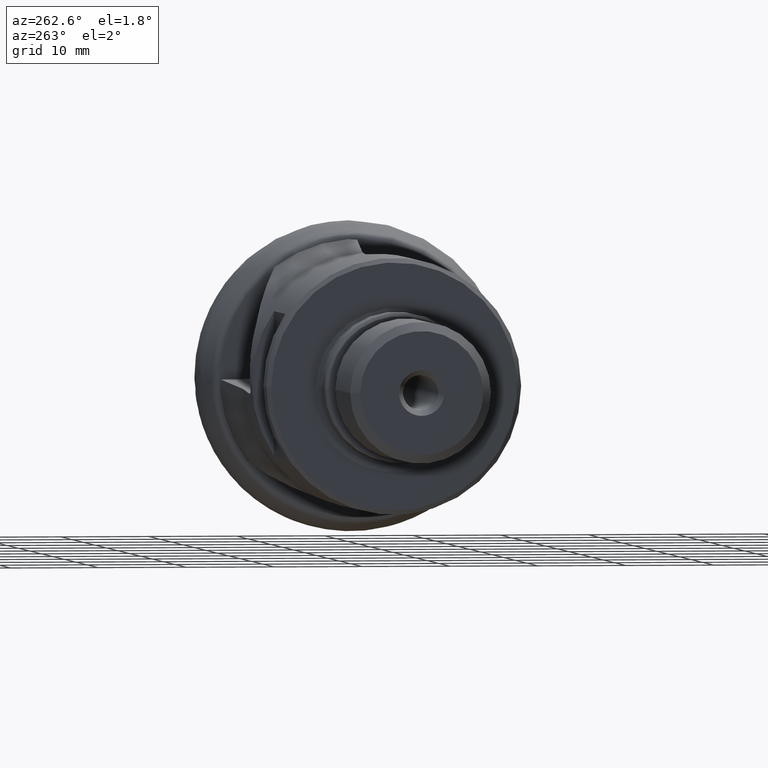
[diagram: clean part render]
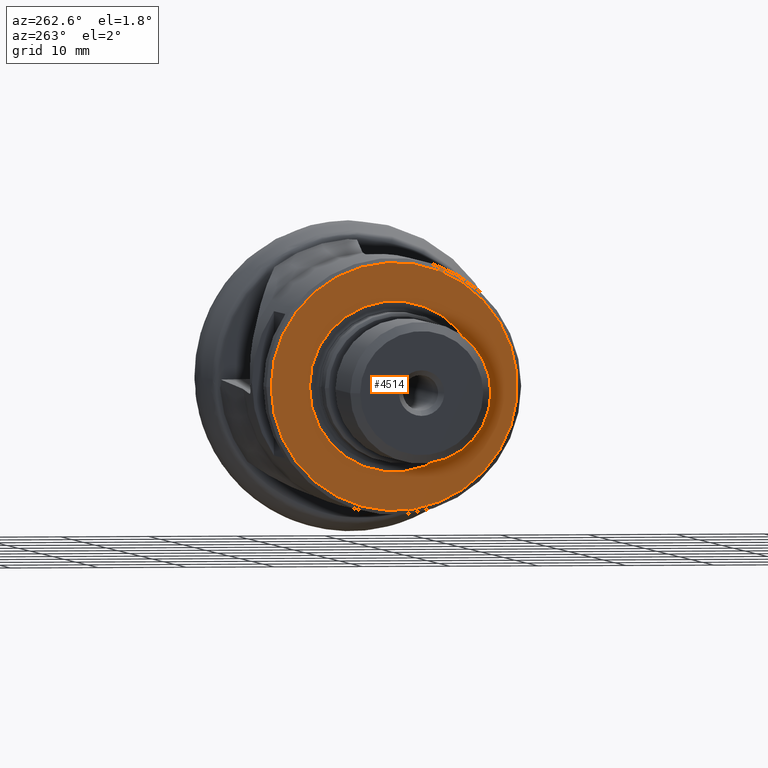
[diagram: same view with one face highlighted and labeled with its STEP entity id]
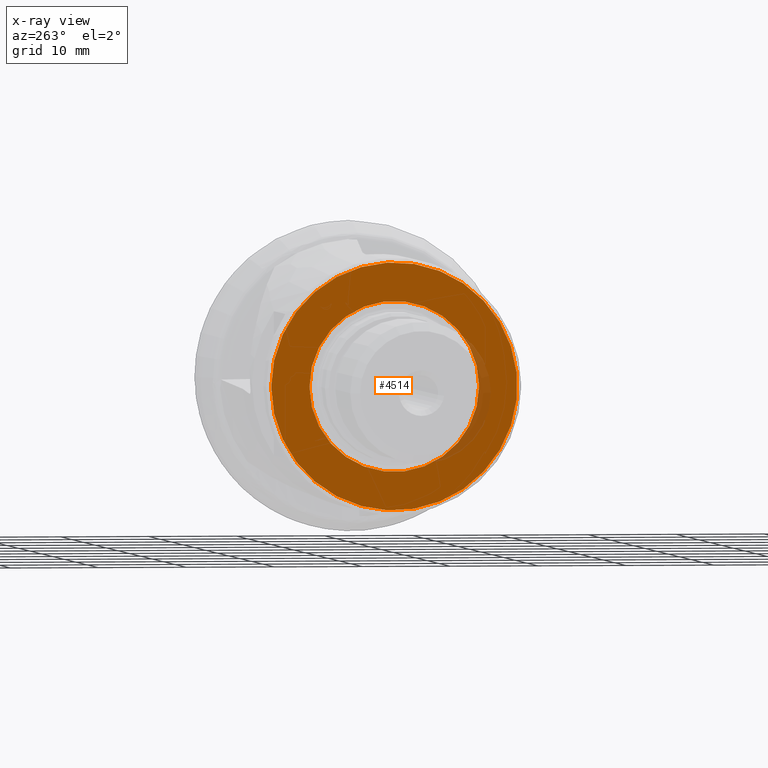
[diagram: x-ray of the same camera — body ghosted, the highlighted face saturated]
A machine part, auxiliary view. The second image highlights one B-rep face of the part: STEP entity #4514.
The next image is the same camera in x-ray: the body ghosted, the highlighted face saturated — about 5% of this face is hidden behind the body in this view.
In plain terms, the highlighted planar face has unit normal (-1, -0, 0).
Its self-contained STEP definition (entity closure, byte-faithful):
#30 = DIRECTION ( 'NONE',  ( 1.000000000000000000, 1.224646799147351500E-016, -0.0000000000000000000 ) ) ;
#48 = CARTESIAN_POINT ( 'NONE',  ( -41.04999999999999700, -5.027175110499877400E-015, 0.0000000000000000000 ) ) ;
#51 = DIRECTION ( 'NONE',  ( 0.0000000000000000000, 1.000000000000000000, 0.0000000000000000000 ) ) ;
#296 = PLANE ( 'NONE',  #922 ) ;
#650 = FACE_OUTER_BOUND ( 'NONE', #2294, .T. ) ;
#922 = AXIS2_PLACEMENT_3D ( 'NONE', #5032, #3311, #4650 ) ;
#1257 = CARTESIAN_POINT ( 'NONE',  ( -41.04999999999999700, 13.99999999999999600, 0.0000000000000000000 ) ) ;
#1328 = CARTESIAN_POINT ( 'NONE',  ( -41.04999999999999700, -5.027175110499877400E-015, 0.0000000000000000000 ) ) ;
#1348 = DIRECTION ( 'NONE',  ( 1.000000000000000000, 1.224646799147351500E-016, -0.0000000000000000000 ) ) ;
#1571 = CIRCLE ( 'NONE', #2504, 9.650000000000000400 ) ;
#1604 = ORIENTED_EDGE ( 'NONE', *, *, #5149, .T. ) ;
#1738 = VERTEX_POINT ( 'NONE', #4371 ) ;
#2142 = EDGE_LOOP ( 'NONE', ( #1604 ) ) ;
#2294 = EDGE_LOOP ( 'NONE', ( #3141 ) ) ;
#2504 = AXIS2_PLACEMENT_3D ( 'NONE', #48, #30, #51 ) ;
#2599 = DIRECTION ( 'NONE',  ( 0.0000000000000000000, 1.000000000000000000, 0.0000000000000000000 ) ) ;
#2938 = AXIS2_PLACEMENT_3D ( 'NONE', #1328, #1348, #2599 ) ;
#3141 = ORIENTED_EDGE ( 'NONE', *, *, #4238, .F. ) ;
#3311 = DIRECTION ( 'NONE',  ( -1.000000000000000000, -1.224646799147351500E-016, 0.0000000000000000000 ) ) ;
#3405 = CIRCLE ( 'NONE', #2938, 14.00000000000000200 ) ;
#4015 = FACE_BOUND ( 'NONE', #2142, .T. ) ;
#4238 = EDGE_CURVE ( 'NONE', #5198, #5198, #3405, .T. ) ;
#4371 = CARTESIAN_POINT ( 'NONE',  ( -41.04999999999999700, 9.649999999999995000, 0.0000000000000000000 ) ) ;
#4514 = ADVANCED_FACE ( 'NONE', ( #4015, #650 ), #296, .T. ) ;
#4650 = DIRECTION ( 'NONE',  ( 1.224646799147351500E-016, -1.000000000000000000, 0.0000000000000000000 ) ) ;
#5032 = CARTESIAN_POINT ( 'NONE',  ( -41.04999999999999700, 13.99999999999999600, 0.0000000000000000000 ) ) ;
#5149 = EDGE_CURVE ( 'NONE', #1738, #1738, #1571, .T. ) ;
#5198 = VERTEX_POINT ( 'NONE', #1257 ) ;